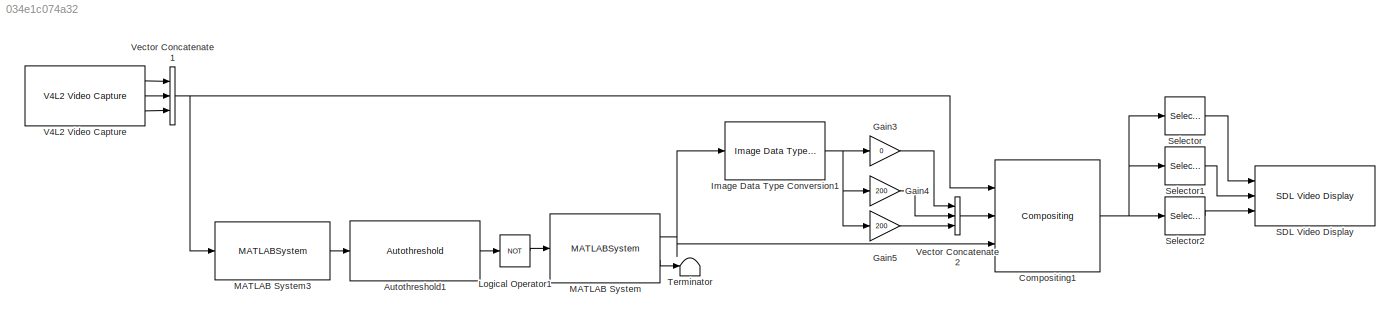
MODEL slx_034e1c074a32
KIND model
CONFIG AbsTol = auto
CONFIG EnableMultiTasking = on
CONFIG FixedStep = auto
CONFIG MaxStep = auto
CONFIG MinStep = auto
CONFIG RelTol = 1e-3
CONFIG SampleTimeConstraint = Unconstrained
CONFIG SolverName = FixedStepAuto
CONFIG StartTime = 0.0
CONFIG StopTime = 10.0
BLOCK [Reference] Autothreshold1  REF=visionconversions/Autothreshold
  Ports = [1, 1]
  SourceBlock = visionconversions/Autothreshold
  SourceProductBaseCode = VP
  SourceType = Autothreshold
BLOCK [Reference] Compositing1  REF=visiontextngfix/Compositing
  Ports = [3, 1]
  SourceBlock = visiontextngfix/Compositing
  SourceProductBaseCode = VP
  SourceType = Compositing
BLOCK [Gain] Gain3
  Gain = 0
  OutDataTypeStr = uint8
  ParamDataTypeStr = uint8
BLOCK [Gain] Gain4
  Gain = 200
  OutDataTypeStr = uint8
  ParamDataTypeStr = uint8
BLOCK [Gain] Gain5
  Gain = 200
  OutDataTypeStr = uint8
  ParamDataTypeStr = uint8
BLOCK [Reference] Image Data Type Conversion1  REF=visionconversions/Image Data Type
Conversion
  Ports = [1, 1]
  SourceBlock = visionconversions/Image Data Type\nConversion
  SourceProductBaseCode = VP
  SourceType = Image Data Type Conversion
BLOCK [Logic] Logical Operator1
  AllPortsSameDT = off
  Operator = NOT
  OutDataTypeStr = boolean
  Ports = [1, 1]
BLOCK [MATLABSystem] MATLAB System
  Degree = 3
  MaskDisplay = disp('BW to Line');\nport_label('input',1,'BW');\nport_label('output',1,'Line');\nport_label('output',2,'P');
  MaskType = CurveDetectionSystem
  Ports = [1, 2]
  SimulateUsing = Code generation
  System = CurveDetectionSystem
BLOCK [MATLABSystem] MATLAB System3
  MaskDisplay = disp('RGB to Gray');\nport_label('input',1,'RGB');\nport_label('output',1,'Gray');
  MaskType = Rgb2GraySystem
  Ports = [1, 1]
  SimulateUsing = Code generation
  System = Rgb2GraySystem
BLOCK [Reference] SDL Video Display  REF=raspberrypiAVlib/SDL Video Display
  Ports = [3]
  SourceBlock = raspberrypiAVlib/SDL Video Display
  SourceProductBaseCode = SC_BEAGLEBONE_BLUE,EMBEDDEDLINUX,NVIDIA,RASPPIIO
  SourceType = SDL Video Display
BLOCK [Selector] Selector
  IndexOptions = Select all,Select all,Index vector (dialog)
  Indices = [1 3],1,1
  InputPortWidth = 3
  NumberOfDimensions = 3
  OutputSizes = 1,1,1
  Ports = [1, 1]
BLOCK [Selector] Selector1
  IndexOptions = Select all,Select all,Index vector (dialog)
  Indices = [1 3],1,2
  InputPortWidth = 3
  NumberOfDimensions = 3
  OutputSizes = 1,1,1
  Ports = [1, 1]
BLOCK [Selector] Selector2
  IndexOptions = Select all,Select all,Index vector (dialog)
  Indices = [1 3],1,3
  InputPortWidth = 3
  NumberOfDimensions = 3
  OutputSizes = 1,1,1
  Ports = [1, 1]
BLOCK [Terminator] Terminator
BLOCK [Reference] V4L2 Video Capture  REF=raspberrypiAVlib/V4L2 Video Capture
  Ports = [0, 3]
  SourceBlock = raspberrypiAVlib/V4L2 Video Capture
  SourceProductBaseCode = RASPPI
  SourceType = codertarget.raspi.internal.Raspiv4l2Capture
BLOCK [Concatenate] Vector Concatenate1
  ConcatenateDimension = 3
  Mode = Multidimensional array
  NumInputs = 3
  Ports = [3, 1]
BLOCK [Concatenate] Vector Concatenate2
  ConcatenateDimension = 3
  Mode = Multidimensional array
  NumInputs = 3
  Ports = [3, 1]
LINE Autothreshold1:1 -> Logical Operator1:1
NET Compositing1:1 -> Selector1:1, Selector2:1, Selector:1
LINE Gain3:1 -> Vector Concatenate2:1
LINE Gain4:1 -> Vector Concatenate2:2
LINE Gain5:1 -> Vector Concatenate2:3
NET Image Data Type Conversion1:1 -> Gain3:1, Gain4:1, Gain5:1
LINE Logical Operator1:1 -> MATLAB System:1
LINE MATLAB System3:1 -> Autothreshold1:1
NET MATLAB System:1 -> Compositing1:3, Image Data Type Conversion1:1
LINE MATLAB System:2 -> Terminator:1
LINE Selector1:1 -> SDL Video Display:2
LINE Selector2:1 -> SDL Video Display:3
LINE Selector:1 -> SDL Video Display:1
LINE V4L2 Video Capture:1 -> Vector Concatenate1:1
LINE V4L2 Video Capture:2 -> Vector Concatenate1:2
LINE V4L2 Video Capture:3 -> Vector Concatenate1:3
NET Vector Concatenate1:1 -> Compositing1:1, MATLAB System3:1
LINE Vector Concatenate2:1 -> Compositing1:2
note: NET lines group one-source signal fan-out (src -> all destinations, sorted); 1:1 wires keep LINE
